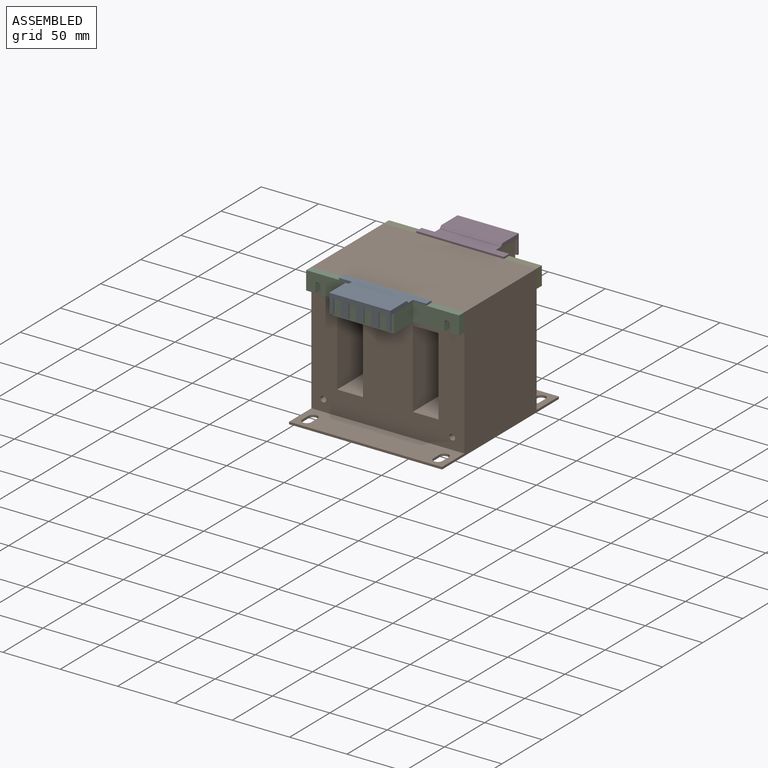
[diagram: assembled view]
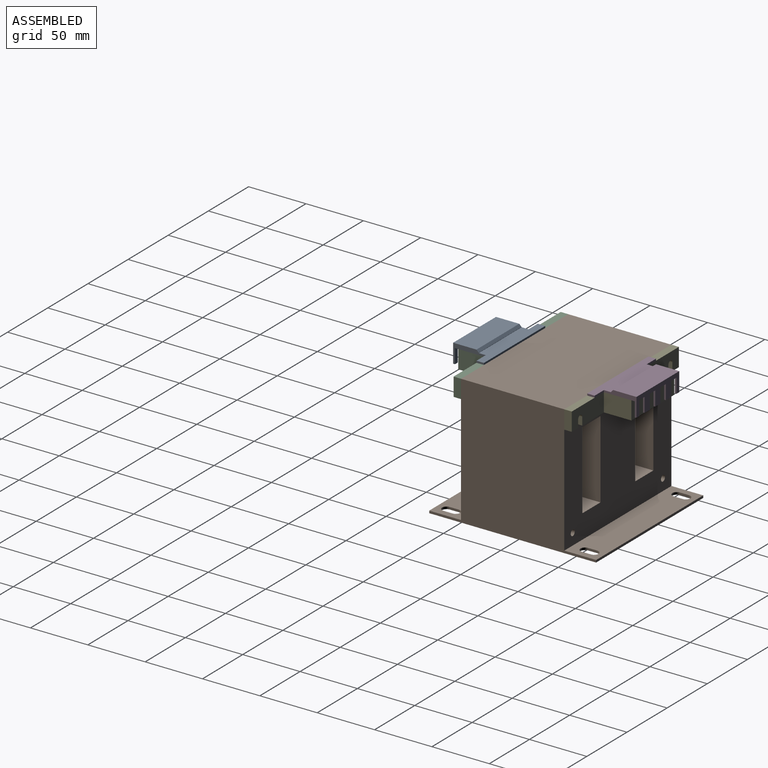
[diagram: assembled view, second angle]
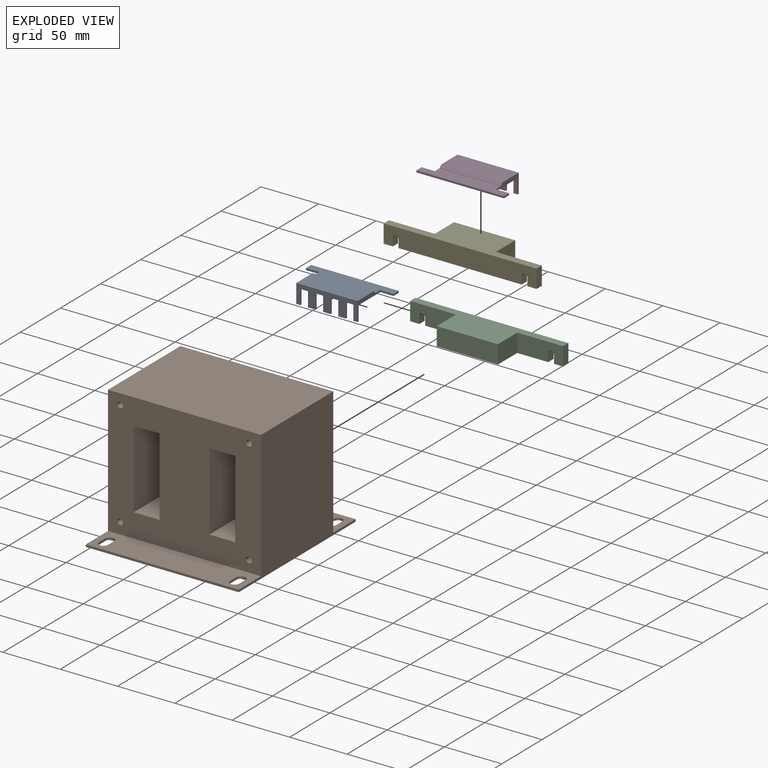
[diagram: exploded view]
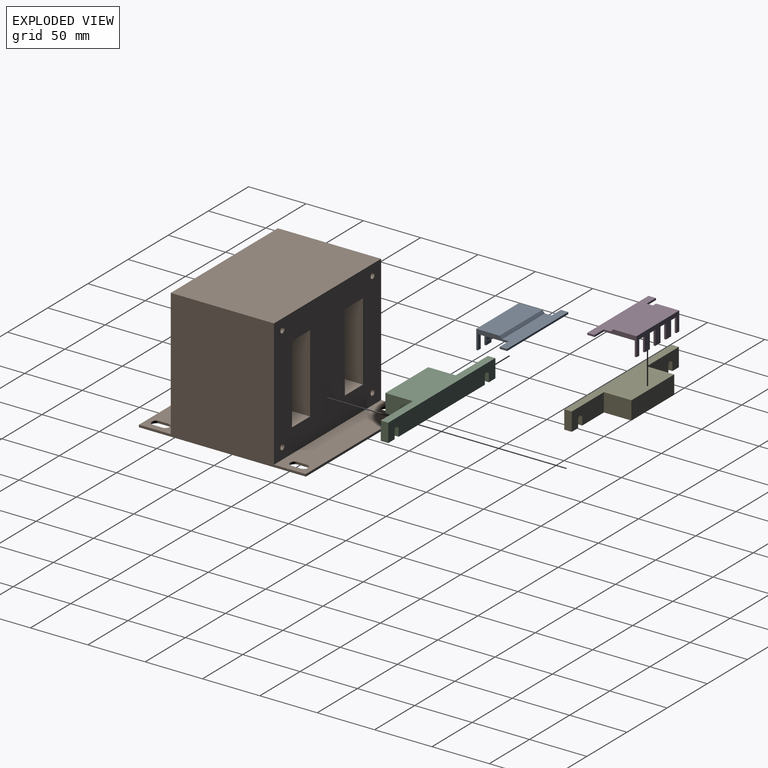
[diagram: exploded view, second angle]
ASSEMBLY  parts=5 mates=2
PART A: 31 faces, bbox 76.3x34.9x16.6 mm
  f0: plane 76.3x34.9mm, normal (0,0,-1), area 1969.9mm2, adj f2,f3,f4,f5,f6,f7,f8,f9
  f1: plane 76.3x12.6mm, normal (0,0,1), area 821.1mm2, adj f2,f3,f4,f5,f6,f7,f8,f10
  f2: plane 28.4x16.55mm, normal (1,0,0), area 111.6mm2, adj f0,f1,f3,f9,f10,f11,f28,f29
  f3: plane 11.5x1.6mm, normal (0,-1,0), area 18.4mm2, adj f0,f1,f2,f4
  f4: plane 6.5x1.6mm, normal (1,0,0), area 10.4mm2, adj f0,f1,f3,f5
  f5: plane 76.3x1.6mm, normal (0,1,0), area 122.1mm2, adj f0,f1,f4,f6
  f6: plane 6.5x1.6mm, normal (-1,0,0), area 10.4mm2, adj f0,f1,f5,f7
  f7: plane 11.5x1.6mm, normal (0,-1,0), area 18.4mm2, adj f0,f1,f6,f8
  f8: plane 28.4x16.55mm, normal (-1,0,0), area 111.6mm2, adj f0,f1,f7,f9,f10,f11,f12,f14
  f9: plane 53.3x16.55mm, normal (0,-1,0), area 540.4mm2, adj f0,f2,f8,f11,f13,f14,f15,f17
  f10: plane 53.3x0.2mm, normal (0,1,0), area 10.7mm2, adj f1,f2,f8,f30
  f11: plane 53.3x20.3mm, normal (0,0,1), area 1082mm2, adj f2,f8,f9,f30
  f12: plane 12.75x3.5mm, normal (0,1,0), area 44.6mm2, adj f0,f8,f13,f14
  f13: plane 12.75x1.5mm, normal (1,0,0), area 19.1mm2, adj f0,f9,f12,f14
  f14: plane 3.5x1.5mm, normal (0,0,-1), area 5.3mm2, adj f8,f9,f12,f13
  f15: plane 12.75x1.5mm, normal (-1,0,0), area 19.1mm2, adj f0,f9,f16,f18
  f16: plane 12.75x6.5mm, normal (0,1,0), area 82.9mm2, adj f0,f15,f17,f18
  f17: plane 12.75x1.5mm, normal (1,0,0), area 19.1mm2, adj f0,f9,f16,f18
  f18: plane 6.5x1.5mm, normal (0,0,-1), area 9.8mm2, adj f9,f15,f16,f17
  f19: plane 12.75x1.5mm, normal (-1,0,0), area 19.1mm2, adj f0,f9,f20,f22
  f20: plane 12.75x6.5mm, normal (0,1,0), area 82.9mm2, adj f0,f19,f21,f22
  f21: plane 12.75x1.5mm, normal (1,0,0), area 19.1mm2, adj f0,f9,f20,f22
  f22: plane 6.5x1.5mm, normal (0,0,-1), area 9.8mm2, adj f9,f19,f20,f21
  f23: plane 12.75x1.5mm, normal (-1,0,0), area 19.1mm2, adj f0,f9,f24,f26
  f24: plane 12.75x6.5mm, normal (0,1,0), area 82.9mm2, adj f0,f23,f25,f26
  f25: plane 12.75x1.5mm, normal (1,0,0), area 19.1mm2, adj f0,f9,f24,f26
  f26: plane 6.5x1.5mm, normal (0,0,-1), area 9.8mm2, adj f9,f23,f24,f25
  f27: plane 12.75x1.5mm, normal (-1,0,0), area 19.1mm2, adj f0,f9,f28,f29
  f28: plane 12.75x3.5mm, normal (0,1,0), area 44.6mm2, adj f0,f2,f27,f29
  f29: plane 3.5x1.5mm, normal (0,0,-1), area 5.3mm2, adj f2,f9,f27,f28
  f30: plane 53.3x2mm, normal (0,0.71,0.71), area 150.8mm2, adj f2,f8,f10,f11
PART B: 38 faces, bbox 133.4x145.5x113.3 mm
  f0: plane 133.35x111.3mm, normal (0,-1,0), area 11703.3mm2, adj f2,f4,f22,f25,f26,f27,f28,f29
  f1: plane 133.35x111.3mm, normal (0,1,0), area 11703.3mm2, adj f4,f22,f23,f25,f26,f27,f28,f29
  f2: plane 133.35x27.75mm, normal (0,0,1), area 3480.4mm2, adj f0,f3,f4,f9,f10,f11,f12,f13
  f3: plane 133.35x2mm, normal (0,-1,0), area 266.7mm2, adj f2,f4,f22,f24
  f4: plane 145.5x113.3mm, normal (1,0,0), area 10308mm2, adj f0,f1,f2,f3,f5,f23,f24,f25
  f5: plane 133.35x2mm, normal (0,1,0), area 266.7mm2, adj f4,f22,f23,f24
  f6: plane 7.85x2mm, normal (-1,0,0), area 15.7mm2, adj f7,f18,f23,f24
  f7: cylinder r=3.92mm len=7.85mm, axis (0,0,-1), area 24.7mm2, adj f6,f8,f23,f24
  f8: plane 7.85x2mm, normal (1,0,0), area 15.7mm2, adj f7,f18,f23,f24
  f9: cylinder r=3.92mm len=7.85mm, axis (0,0,-1), area 24.7mm2, adj f2,f10,f19,f24
  f10: plane 7.85x2mm, normal (1,0,0), area 15.7mm2, adj f2,f9,f11,f24
  f11: cylinder r=3.92mm len=7.85mm, axis (0,0,-1), area 24.7mm2, adj f2,f10,f19,f24
  f12: plane 7.85x2mm, normal (-1,0,0), area 15.7mm2, adj f2,f13,f20,f24
  f13: cylinder r=3.92mm len=7.85mm, axis (0,0,-1), area 24.7mm2, adj f2,f12,f14,f24
  f14: plane 7.85x2mm, normal (1,0,0), area 15.7mm2, adj f2,f13,f20,f24
  f15: cylinder r=3.92mm len=7.85mm, axis (0,0,-1), area 24.7mm2, adj f16,f21,f23,f24
  f16: plane 7.85x2mm, normal (1,0,0), area 15.7mm2, adj f15,f17,f23,f24
  f17: cylinder r=3.92mm len=7.85mm, axis (0,0,-1), area 24.7mm2, adj f16,f21,f23,f24
  f18: cylinder r=3.92mm len=7.85mm, axis (0,0,-1), area 24.7mm2, adj f6,f8,f23,f24
  f19: plane 7.85x2mm, normal (-1,0,0), area 15.7mm2, adj f2,f9,f11,f24
  f20: cylinder r=3.92mm len=7.85mm, axis (0,0,-1), area 24.7mm2, adj f2,f12,f14,f24
  f21: plane 7.85x2mm, normal (-1,0,0), area 15.7mm2, adj f15,f17,f23,f24
  f22: plane 145.5x113.3mm, normal (-1,0,0), area 10308mm2, adj f0,f1,f2,f3,f5,f23,f24,f25
  f23: plane 133.35x27.75mm, normal (0,0,1), area 3480.4mm2, adj f1,f4,f5,f6,f7,f8,f15,f16
  f24: plane 145.5x133.35mm, normal (0,0,-1), area 18962.3mm2, adj f3,f4,f5,f6,f7,f8,f9,f10
  f25: plane 133.35x90mm, normal (0,0,1), area 12001.5mm2, adj f0,f1,f4,f22
  f26: plane 90x22.5mm, normal (0,0,-1), area 2025mm2, adj f0,f1,f27,f29
  f27: plane 90x68mm, normal (1,0,0), area 6120mm2, adj f0,f1,f26,f28
  f28: plane 90x22.5mm, normal (0,0,1), area 2025mm2, adj f0,f1,f27,f29
  f29: plane 90x68mm, normal (-1,0,0), area 6120mm2, adj f0,f1,f26,f28
  f30: cylinder r=2.5mm len=90mm, axis (0,-1,0), area 1413.7mm2, adj f0,f1
  f31: cylinder r=2.5mm len=90mm, axis (0,-1,0), area 1413.7mm2, adj f0,f1
  f32: cylinder r=2.5mm len=90mm, axis (0,-1,0), area 1413.7mm2, adj f0,f1
  f33: cylinder r=2.5mm len=90mm, axis (0,-1,0), area 1413.7mm2, adj f0,f1
  f34: plane 90x22.5mm, normal (0,0,-1), area 2025mm2, adj f0,f1,f35,f37
  f35: plane 90x68mm, normal (1,0,0), area 6120mm2, adj f0,f1,f34,f36
  f36: plane 90x22.5mm, normal (0,0,1), area 2025mm2, adj f0,f1,f35,f37
  f37: plane 90x68mm, normal (-1,0,0), area 6120mm2, adj f0,f1,f34,f36
PART C: 18 faces, bbox 133.4x30.5x16 mm
  f0: plane 40.03x16mm, normal (0,-1,0), area 597.1mm2, adj f4,f5,f6,f7,f8,f9,f10,f16
  f1: plane 6.67x6.5mm, normal (-1,0,0), area 43.3mm2, adj f2,f12,f13,f14
  f2: plane 8x6.5mm, normal (0,0,-1), area 52mm2, adj f1,f3,f13,f14
  f3: plane 16x6.5mm, normal (1,0,0), area 104mm2, adj f2,f4,f13,f14
  f4: plane 133.35x30.5mm, normal (0,0,1), area 2146mm2, adj f0,f3,f5,f13,f14,f15,f16,f17
  f5: plane 16x6.5mm, normal (-1,0,0), area 104mm2, adj f0,f4,f6,f14
  f6: plane 8x6.5mm, normal (0,0,-1), area 52mm2, adj f0,f5,f7,f14
  f7: plane 6.67x6.5mm, normal (1,0,0), area 43.3mm2, adj f0,f6,f8,f14
  f8: cylinder r=2.5mm len=6.5mm, axis (0,1,0), area 52.3mm2, adj f0,f7,f9,f14
  f9: plane 6.53x6.5mm, normal (-1,0,0), area 42.5mm2, adj f0,f8,f10,f14
  f10: plane 107.36x30.5mm, normal (0,0,-1), area 1977mm2, adj f0,f9,f11,f13,f14,f15,f16,f17
  f11: plane 6.53x6.5mm, normal (1,0,0), area 42.5mm2, adj f10,f12,f13,f14
  f12: cylinder r=2.5mm len=6.5mm, axis (0,1,0), area 52.3mm2, adj f1,f11,f13,f14
  f13: plane 40.03x16mm, normal (0,-1,0), area 597.1mm2, adj f1,f2,f3,f4,f10,f11,f12,f15
  f14: plane 133.35x16mm, normal (0,1,0), area 2047mm2, adj f1,f2,f3,f4,f5,f6,f7,f8
  f15: plane 24x16mm, normal (1,0,0), area 384mm2, adj f4,f10,f13,f17
  f16: plane 24x16mm, normal (-1,0,0), area 384mm2, adj f0,f4,f10,f17
  f17: plane 53.3x16mm, normal (0,-1,0), area 852.8mm2, adj f4,f10,f15,f16
PART D: same geometry as A
PART E: same geometry as C
PLACE A t=(-32.49,-0.71,-1.63)mm
PLACE B t=(-32.49,-0.71,-1.63)mm
PLACE C t=(-32.49,-0.71,-1.63)mm
PLACE D rot(axis=(0,0,1),180deg) t=(-32.49,-0.71,-1.63)mm
PLACE E rot(axis=(0,0,1),180deg) t=(-32.49,-0.71,-1.63)mm
MATE fastened E.f12 <-> B.f32  axis (0,-1,0) through (-88.66,44.29,102.37)mm
MATE fastened D.f0 <-> E.f4  axis (0,0,-1) through (-32.49,60.32,111.67)mm
